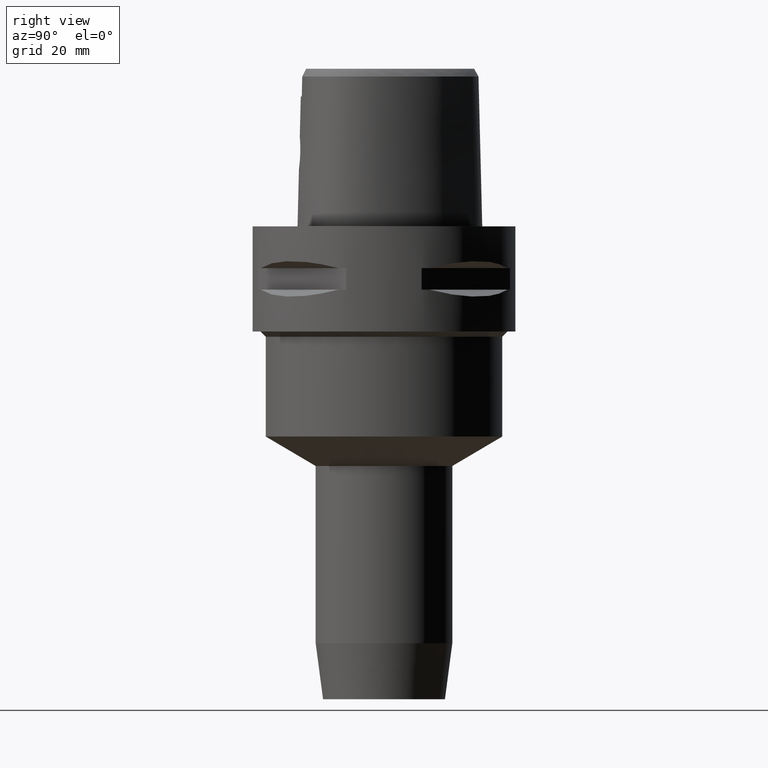
[diagram: clean part render]
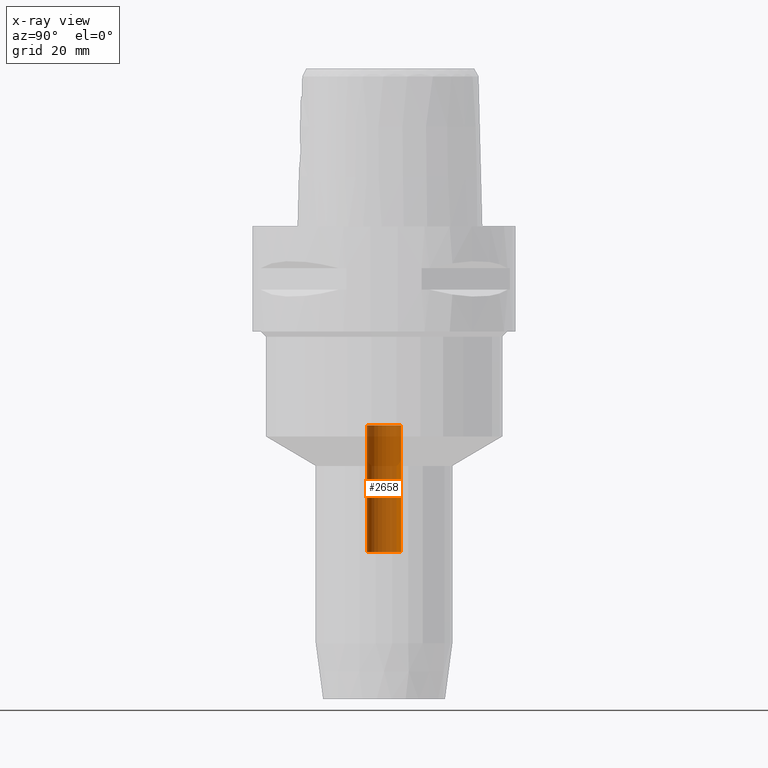
[diagram: x-ray — body ghosted, one internal face saturated and labeled with its STEP entity id]
A machine part, right view, then the same camera in x-ray: the body is ghosted and one INTERNAL B-rep face — a face not visible from any outside direction — is saturated and labeled: STEP entity #2658.
In plain terms, the highlighted cylindrical surface (edge-blend (fillet) strip) has radius 3.25 mm, axis along (0, 0, -1).
Its self-contained STEP definition (entity closure, byte-faithful):
#702=CARTESIAN_POINT('',(0.E0,1.279755905109E-14,-6.2E1));
#703=DIRECTION('',(0.E0,0.E0,-1.E0));
#704=DIRECTION('',(0.E0,-1.E0,0.E0));
#705=AXIS2_PLACEMENT_3D('',#702,#703,#704);
#734=DIRECTION('',(0.E0,0.E0,1.E0));
#735=VECTOR('',#734,2.41E1);
#736=CARTESIAN_POINT('',(0.E0,-3.25E0,-6.2E1));
#737=LINE('',#736,#735);
#741=DIRECTION('',(0.E0,0.E0,1.E0));
#742=VECTOR('',#741,2.41E1);
#743=CARTESIAN_POINT('',(0.E0,3.25E0,-6.2E1));
#744=LINE('',#743,#742);
#756=CARTESIAN_POINT('',(0.E0,1.279755905109E-14,-3.79E1));
#757=DIRECTION('',(0.E0,0.E0,1.E0));
#758=DIRECTION('',(0.E0,1.E0,0.E0));
#759=AXIS2_PLACEMENT_3D('',#756,#757,#758);
#1634=CARTESIAN_POINT('',(0.E0,-3.25E0,-6.2E1));
#1635=CARTESIAN_POINT('',(0.E0,3.25E0,-6.2E1));
#1636=VERTEX_POINT('',#1634);
#1637=VERTEX_POINT('',#1635);
#1638=CARTESIAN_POINT('',(0.E0,3.25E0,-3.79E1));
#1639=VERTEX_POINT('',#1638);
#1640=CARTESIAN_POINT('',(0.E0,-3.25E0,-3.79E1));
#1641=VERTEX_POINT('',#1640);
#2644=CARTESIAN_POINT('',(0.E0,1.279755905109E-14,4.5E0));
#2645=DIRECTION('',(0.E0,0.E0,-1.E0));
#2646=DIRECTION('',(0.E0,-1.E0,0.E0));
#2647=AXIS2_PLACEMENT_3D('',#2644,#2645,#2646);
#2648=CYLINDRICAL_SURFACE('',#2647,3.25E0);
#2650=ORIENTED_EDGE('',*,*,#2649,.F.);
#2651=ORIENTED_EDGE('',*,*,#2633,.F.);
#2653=ORIENTED_EDGE('',*,*,#2652,.T.);
#2655=ORIENTED_EDGE('',*,*,#2654,.F.);
#2656=EDGE_LOOP('',(#2650,#2651,#2653,#2655));
#2657=FACE_OUTER_BOUND('',#2656,.F.);
#706=CIRCLE('',#705,3.25E0);
#760=CIRCLE('',#759,3.25E0);
#2633=EDGE_CURVE('',#1636,#1637,#706,.T.);
#2649=EDGE_CURVE('',#1637,#1639,#744,.T.);
#2652=EDGE_CURVE('',#1636,#1641,#737,.T.);
#2654=EDGE_CURVE('',#1639,#1641,#760,.T.);
#2658=ADVANCED_FACE('',(#2657),#2648,.F.);